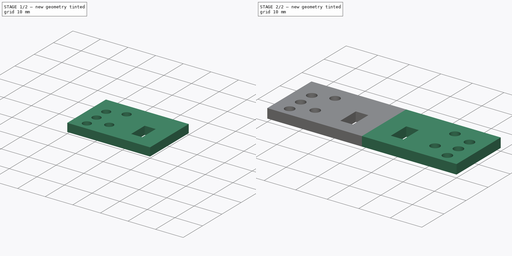
[diagram: build sequence overview — one tinted view per stage of 2, left to right]
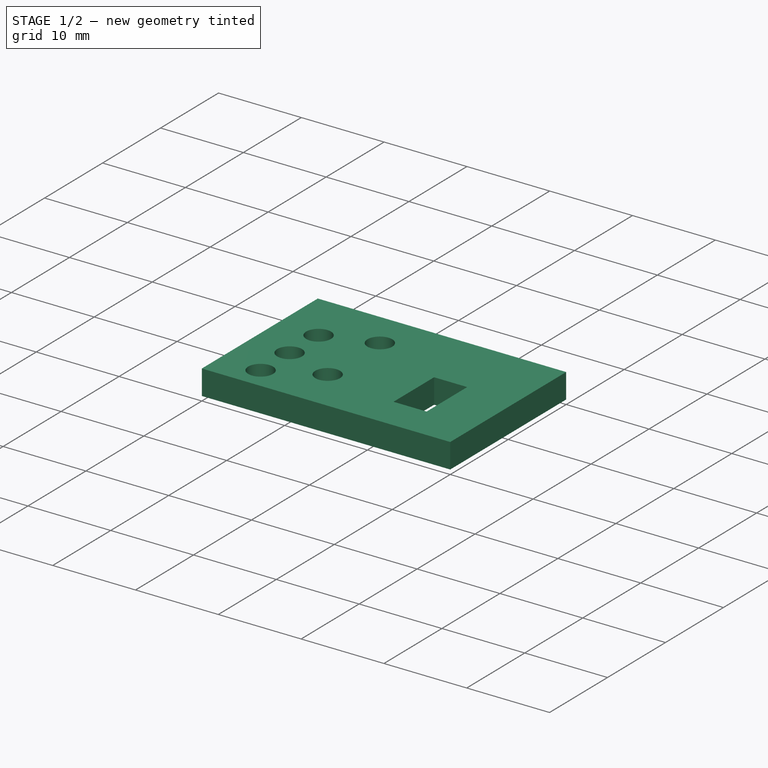
[diagram: stage 1 of 2 — iso view after this stage's code; geometry added in this stage tinted green]
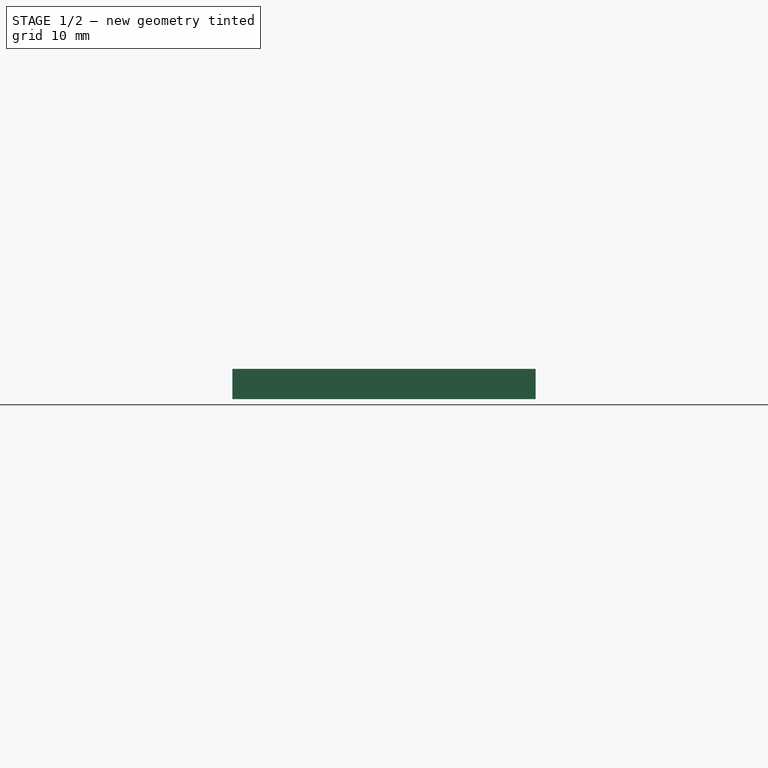
[diagram: stage 1 of 2 — front view after this stage's code; geometry added in this stage tinted green]
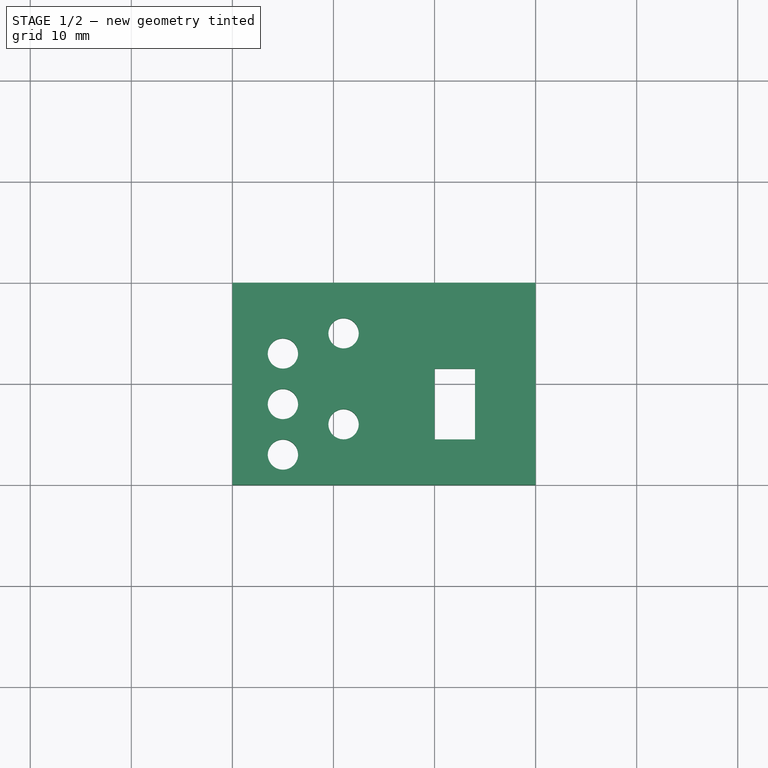
[diagram: stage 1 of 2 — top view after this stage's code; geometry added in this stage tinted green]
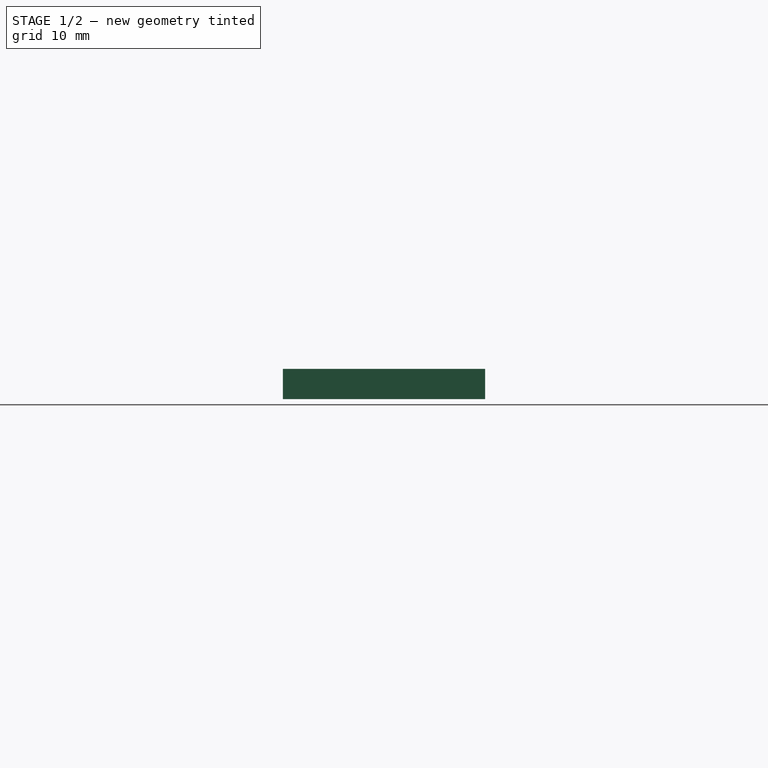
[diagram: stage 1 of 2 — right view after this stage's code; geometry added in this stage tinted green]
FCSTD DOCUMENT  (FreeCAD 0.16R6707 (Git))
Label: support_guidage_horizontal
License: All rights reserved
LicenseURL: http://en.wikipedia.org/wiki/All_rights_reserved
objects: Sketcher::SketchObject×1, PartDesign::Pad×1, PartDesign::Mirrored×1, Drawing::FeatureViewPart×1, Drawing::FeaturePage×1
note: 4 computed .brp shape members not serialized (recipe doc carries the construction recipe); baked Part::Feature solids carry a one-line shape summary decoded from their .brp

FEATURE [Sketcher::SketchObject] Sketch
  sketch-geometry (20):
    g0: LineSegment StartX=0 StartY=0 StartZ=0 EndX=30 EndY=0 EndZ=0
    g1: LineSegment StartX=30 StartY=0 StartZ=0 EndX=30 EndY=20 EndZ=0
    g2: LineSegment StartX=30 StartY=20 StartZ=0 EndX=0 EndY=20 EndZ=0
    g3: LineSegment StartX=0 StartY=20 StartZ=0 EndX=0 EndY=0 EndZ=0
    g4: GeomPoint [constr] X=5 Y=8 Z=0
    g5: GeomPoint [constr] X=20 Y=8 Z=0
    g6: GeomPoint [constr] X=20 Y=11.5 Z=0
    g7: LineSegment StartX=20 StartY=11.5 StartZ=0 EndX=24 EndY=11.5 EndZ=0
    g8: LineSegment StartX=24 StartY=11.5 StartZ=0 EndX=24 EndY=4.5 EndZ=0
    g9: LineSegment StartX=24 StartY=4.5 StartZ=0 EndX=20 EndY=4.5 EndZ=0
    g10: LineSegment StartX=20 StartY=4.5 StartZ=0 EndX=20 EndY=11.5 EndZ=0
    g11: Circle CenterX=5 CenterY=8 CenterZ=0 NormalX=0 NormalY=0 NormalZ=1 Radius=1.5
    g12: GeomPoint [constr] X=11 Y=6 Z=0
    g13: GeomPoint [constr] X=11 Y=15 Z=0
    g14: Circle CenterX=11 CenterY=15 CenterZ=0 NormalX=0 NormalY=0 NormalZ=1 Radius=1.5
    g15: Circle CenterX=11 CenterY=6 CenterZ=0 NormalX=0 NormalY=0 NormalZ=1 Radius=1.5
    g16: GeomPoint [constr] X=5 Y=13 Z=0
    g17: GeomPoint [constr] X=5 Y=3 Z=0
    g18: Circle CenterX=5 CenterY=13 CenterZ=0 NormalX=0 NormalY=0 NormalZ=1 Radius=1.5
    g19: Circle CenterX=5 CenterY=3 CenterZ=0 NormalX=0 NormalY=0 NormalZ=1 Radius=1.5
  constraints (46):
    c: Coincident(g0,g1)
    c: Coincident(g1,g2)
    c: Coincident(g2,g3)
    c: Coincident(g3,g0)
    c: Horizontal(g0)
    c: Horizontal(g2)
    c: Vertical(g1)
    c: Vertical(g3)
    c: Coincident(g0,g-1)
    c: Distance(g2) = 30
    c: Distance(g3) = 20
    c: DistanceX(g4) = 5
    c: DistanceY(g4) = 8
    c: DistanceY(g5,g4) = 0
    c: DistanceX(g4,g5) = 15
    c: DistanceY(g5,g6) = 3.5
    c: DistanceX(g5,g6) = 0
    c: Coincident(g7,g8)
    c: Coincident(g8,g9)
    c: Coincident(g9,g10)
    c: Coincident(g10,g7)
    c: Horizontal(g7)
    c: Horizontal(g9)
    c: Vertical(g8)
    c: Vertical(g10)
    c: Coincident(g7,g6)
    c: Distance(g7) = 4
    c: Distance(g8) = 7
    c: Coincident(g11,g4)
    c: Radius(g11) = 1.5
    c: DistanceX(g12) = 11
    c: DistanceY(g-1,g12) = 6
    c: DistanceY(g12,g13) = 9
    c: DistanceX(g12,g13) = 0
    c: Coincident(g14,g13)
    c: Coincident(g15,g12)
    c: Radius(g15) = 1.5
    c: Equal(g15,g14)
    c: DistanceY(g17,g4) = 5
    c: DistanceY(g4,g16) = 5
    c: DistanceX(g16,g4) = 0
    c: DistanceX(g17,g4) = 0
    c: Coincident(g18,g16)
    c: Coincident(g19,g17)
    c: Radius(g19) = 1.5
    c: Equal(g19,g18)
FEATURE [PartDesign::Pad] Pad
  Length = 3
  Length2 = 100
  Sketch = -> Sketch
  Type = 0
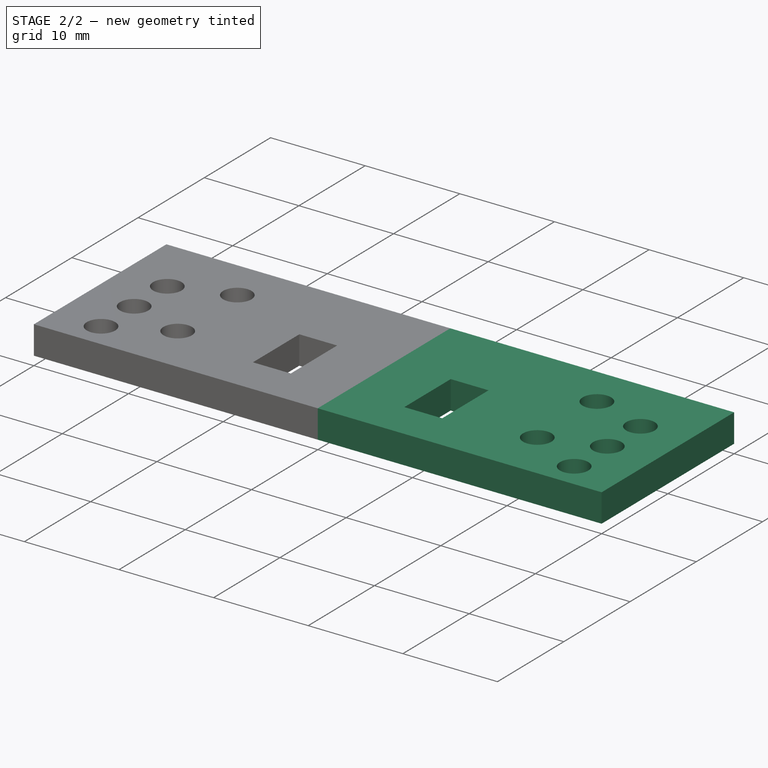
[diagram: stage 2 of 2 — iso view after this stage's code; geometry added in this stage tinted green]
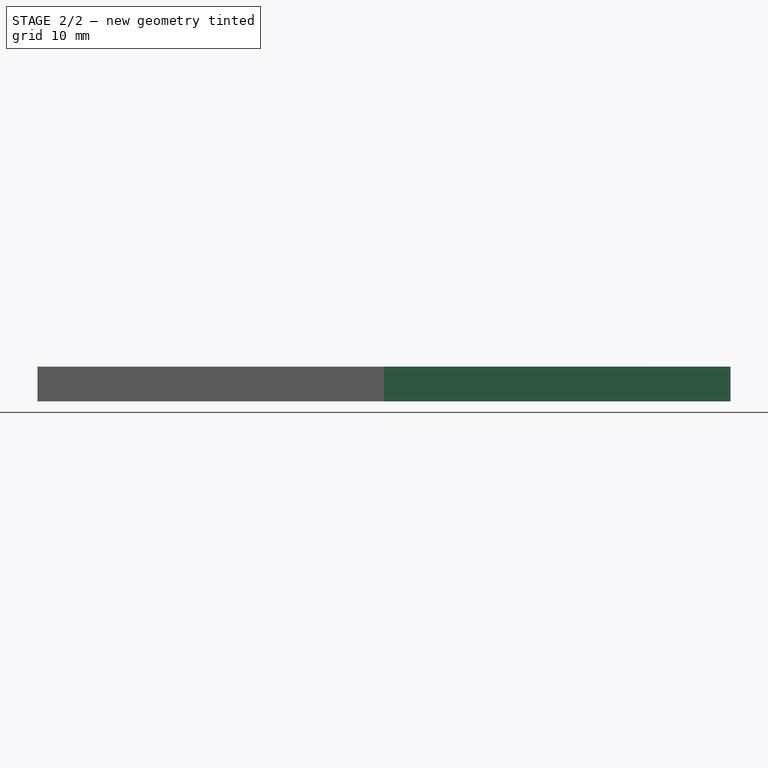
[diagram: stage 2 of 2 — front view after this stage's code; geometry added in this stage tinted green]
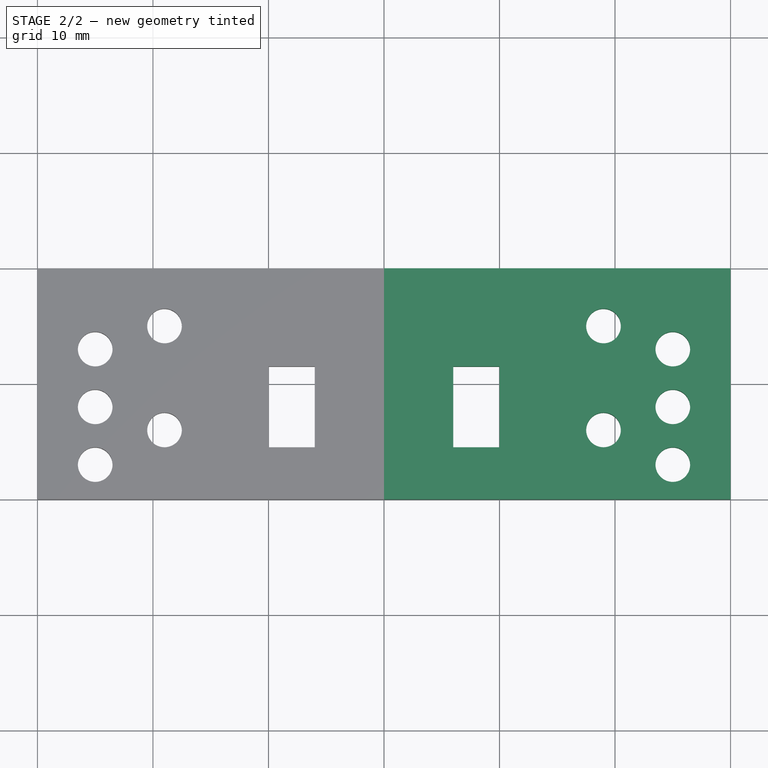
[diagram: stage 2 of 2 — top view after this stage's code; geometry added in this stage tinted green]
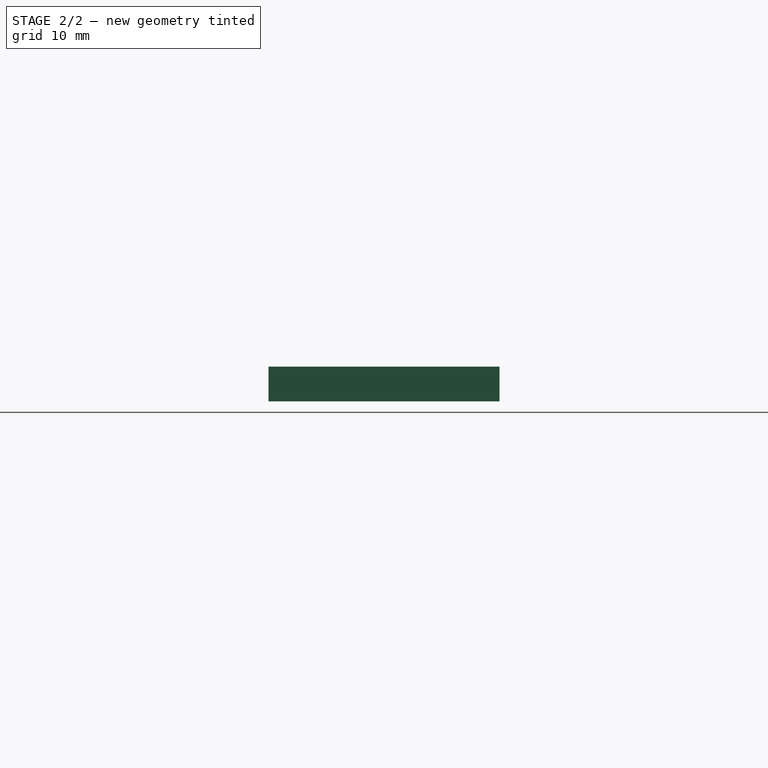
[diagram: stage 2 of 2 — right view after this stage's code; geometry added in this stage tinted green]
FEATURE [PartDesign::Mirrored] Mirrored
  MirrorPlane = -> Pad [Face2]
  Originals = -> [Pad]
FEATURE [Drawing::FeatureViewPart] Ortho  label="Ortho_0_0"
  Direction = (0,0,1)
  HiddenWidth = 0.15
  LineWidth = 0.35
  Rotation = 0
  ShowHiddenLines = false
  ShowSmoothLines = false
  Source = -> Mirrored
  Tolerance = 0.05
  ViewResult = <g id="Ortho_0_0"\n   transform="rotate(0,180,128.5) translate(180,128.5) scale(1,1)"\n  >\n<g   stroke="rgb(0, 0, 0)"\n   stroke-width="0.35"\n   stroke-linecap="butt"\n   stroke-linejoin="miter"\n   fill="none"\n   transform="scale(1,-1)"\n  >\n<path id= "1" d=" M 0 20 L 0 0 " />\n<path id= "2" d=" M 30 20 L 0 20 " />\n<path id= "3" d=" M 0 0 L 30 0 " />\n<path id= "4" d=" M 30 0 L 30 20 " />\n<circle cx ="5" cy ="3" r ="1.5" /><circle cx ="5" cy ="8" r ="1.5" /><circle cx ="11" cy ="6" r ="1.5" /><circle cx ="11" cy ="15" r ="1.5" /><circle cx ="5" cy ="13" r ="1.5" /><path id= "10" d=" M 20 11.5 L 24 11.5 " />\n<path id= "11" d=" M 20 4.5 L 20 11.5 " />\n<path id= "12" d=" M 24 11.5 L 24 4.5 " />\n<path id= "13" d=" M 24 4.5 L 20 4.5 " />\n<path id= "14" d=" M 30 20 L 60 20 " />\n<path id= "15" d=" M 60 0 L 30 0 " />\n<path id= "16" d=" M 60 20 L 60 0 " />\n<circle cx ="55" cy ="3" r ="1.5" /><circle cx ="55" cy ="8" r ="1.5" /><circle cx ="49" cy ="6" r ="1.5" /><circle cx ="49" cy ="15" r ="1.5" /><circle cx ="55" cy ="13" r ="1.5" /><path id= "22" d=" M 40 11.5 L 36 11.5 " />\n<path id= "23" d=" M 40 4.5 L 40 11.5 " />\n<path id= "24" d=" M 36 11.5 L 36 4.5 " />\n<path id= "25" d=" M 36 4.5 L 40 4.5 " />\n</g>\n</g>
  Visible = true
  X = 180
  Y = 128.5
FEATURE [Drawing::FeaturePage] Page
  EditableTexts = AUTHOR NAME | CREATION DATE | SUPERVISOR NAME | CHECK DATE | SCALE | WEIGHT | NUMBER | SHEET | TITLE | SUBTITLE
  Group = -> [Ortho]
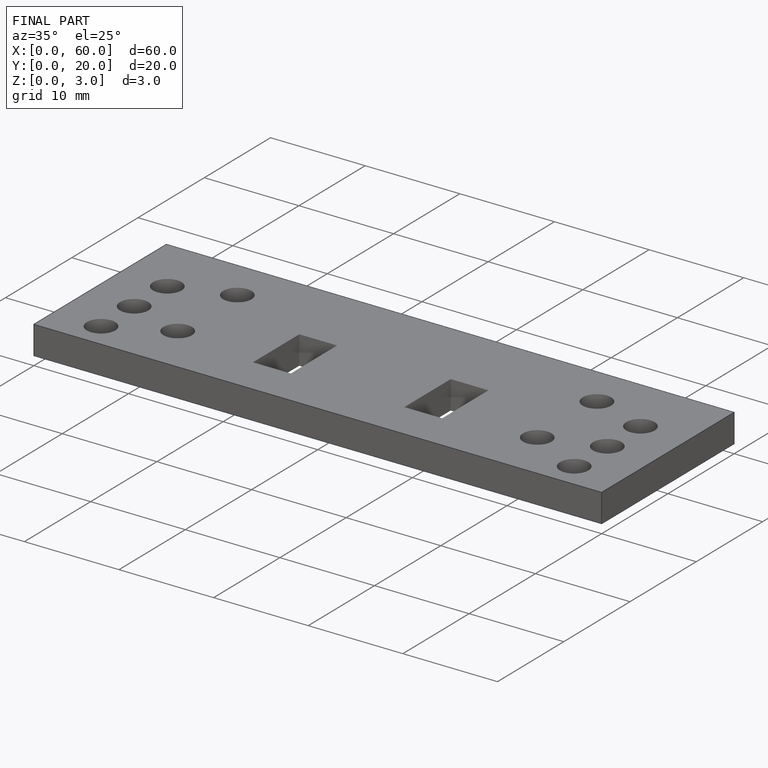
[diagram: finished part — iso view with bounding-box wireframe]
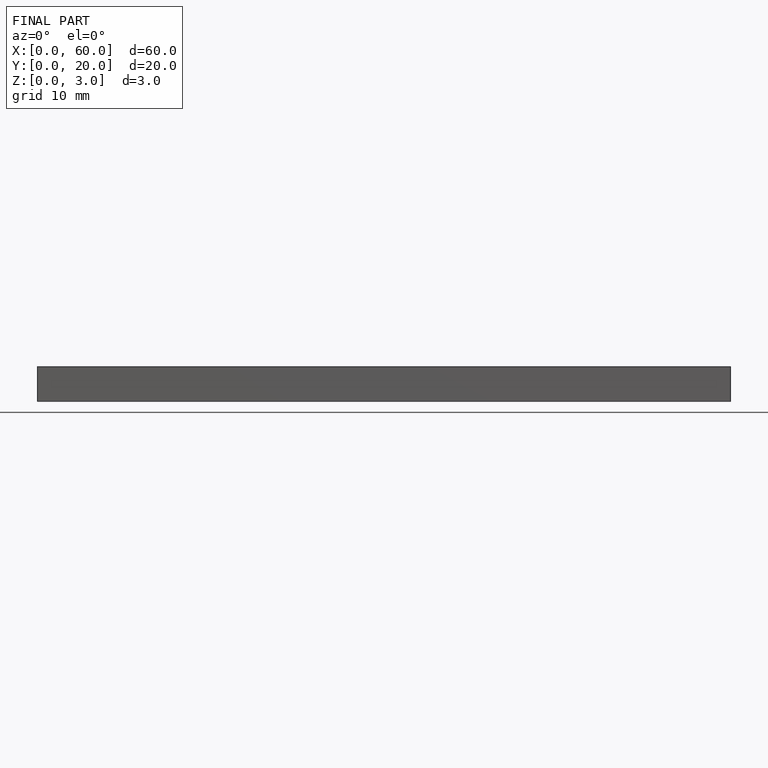
[diagram: finished part — front view with bounding-box wireframe]
